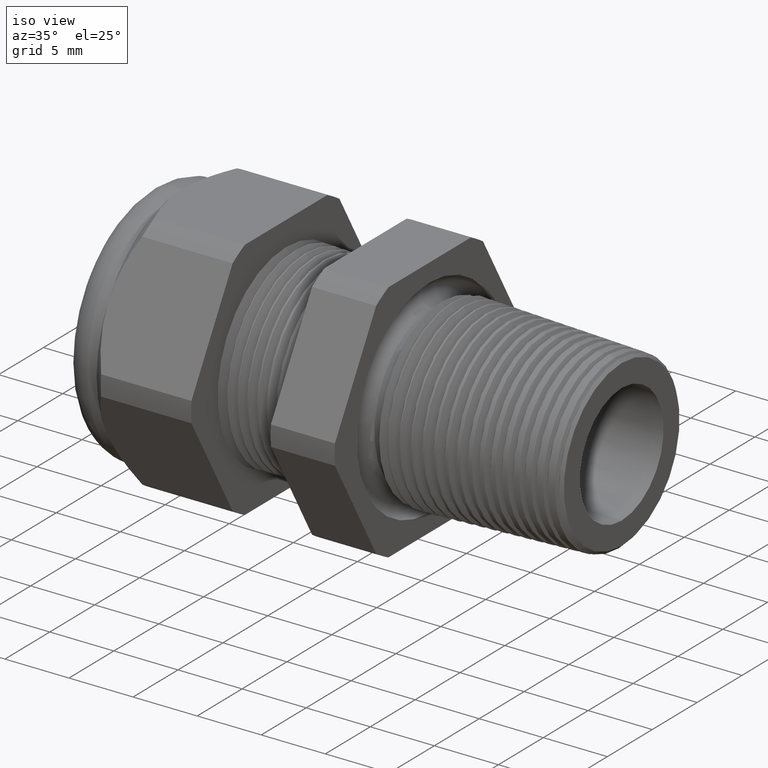
[diagram: clean part render]
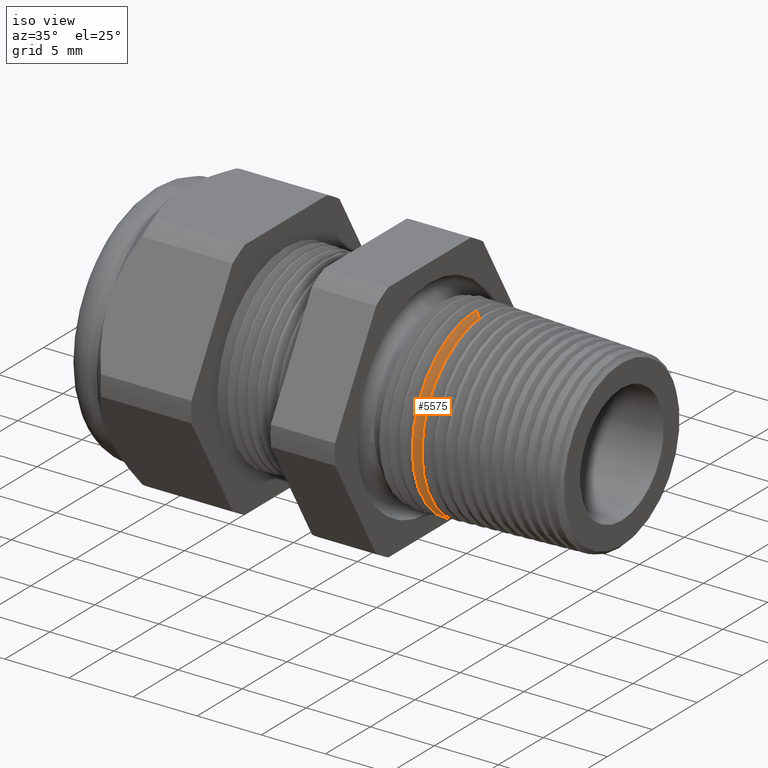
[diagram: same view with one face highlighted and labeled with its STEP entity id]
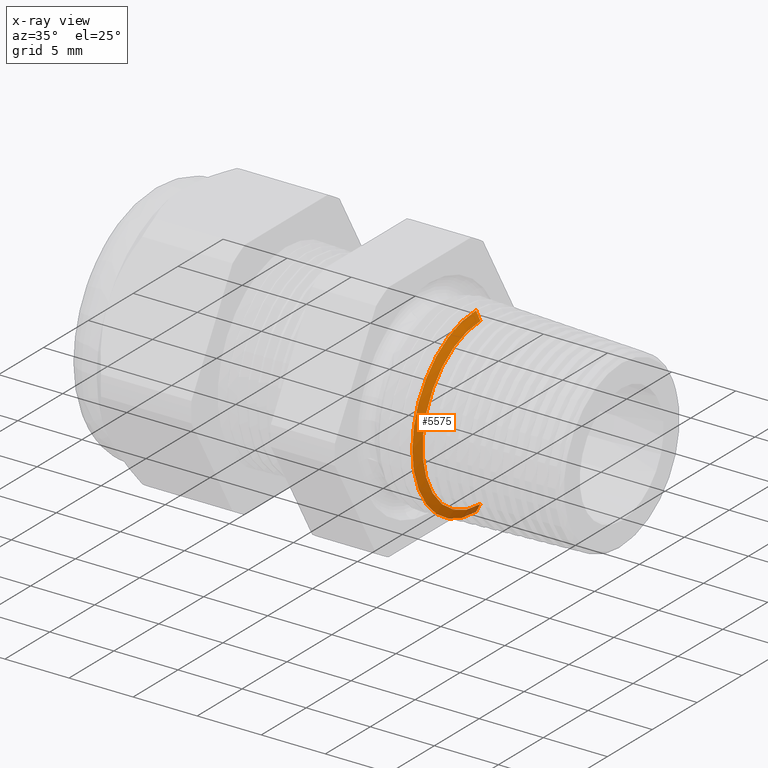
[diagram: x-ray of the same camera — body ghosted, the highlighted face saturated]
A machine part, iso view. The second image highlights one B-rep face of the part: STEP entity #5575.
The next image is the same camera in x-ray: the body ghosted, the highlighted face saturated — about 3% of this face is hidden behind the body in this view.
In plain terms, the highlighted conical surface has half-angle 62 deg.
Its self-contained STEP definition (entity closure, byte-faithful):
#2 = ORIENTED_EDGE ( 'NONE', *, *, #1521, .T. ) ;
#817 = EDGE_CURVE ( 'NONE', #867, #883, #3137, .T. ) ;
#864 = EDGE_CURVE ( 'NONE', #879, #865, #3194, .T. ) ;
#865 = VERTEX_POINT ( 'NONE', #3190 ) ;
#867 = VERTEX_POINT ( 'NONE', #3189 ) ;
#879 = VERTEX_POINT ( 'NONE', #3217 ) ;
#883 = VERTEX_POINT ( 'NONE', #3206 ) ;
#1521 = EDGE_CURVE ( 'NONE', #883, #865, #4401, .T. ) ;
#3134 = DIRECTION ( 'NONE',  ( -0.4694715627859018000, 0.0000000000000000000, 0.8829475928589209900 ) ) ;
#3135 = VECTOR ( 'NONE', #3134, 39.37007874015748100 ) ;
#3136 = CARTESIAN_POINT ( 'NONE',  ( -0.1699999999999999600, 0.0000000000000000000, 0.2846046150878539500 ) ) ;
#3137 = LINE ( 'NONE', #3136, #3135 ) ;
#3189 = CARTESIAN_POINT ( 'NONE',  ( -0.1537370280109210400, 0.0000000000000000000, 0.2540184132628081100 ) ) ;
#3190 = CARTESIAN_POINT ( 'NONE',  ( -0.1673513421592404700, 3.425523832454768600E-017, -0.2796232141890905900 ) ) ;
#3191 = DIRECTION ( 'NONE',  ( -0.4694715627859018000, 1.081298943409538000E-016, -0.8829475928589209900 ) ) ;
#3192 = VECTOR ( 'NONE', #3191, 39.37007874015748100 ) ;
#3193 = CARTESIAN_POINT ( 'NONE',  ( -0.1699999999999999600, 3.485401308899049100E-017, -0.2846046150878539500 ) ) ;
#3194 = LINE ( 'NONE', #3193, #3192 ) ;
#3206 = CARTESIAN_POINT ( 'NONE',  ( -0.1673513421592404700, 0.0000000000000000000, 0.2796232141890905900 ) ) ;
#3217 = CARTESIAN_POINT ( 'NONE',  ( -0.1537370280109210400, 3.267612554753760900E-017, -0.2540184132628081100 ) ) ;
#4398 = DIRECTION ( 'NONE',  ( 0.0000000000000000000, 0.0000000000000000000, 1.000000000000000000 ) ) ;
#4399 = DIRECTION ( 'NONE',  ( 1.000000000000000000, 0.0000000000000000000, 0.0000000000000000000 ) ) ;
#4400 = AXIS2_PLACEMENT_3D ( 'NONE', #4406, #4399, #4398 ) ;
#4401 = CIRCLE ( 'NONE', #4400, 0.2796232141890905900 ) ;
#4406 = CARTESIAN_POINT ( 'NONE',  ( -0.1673513421592404700, 0.0000000000000000000, 0.0000000000000000000 ) ) ;
#5086 = DIRECTION ( 'NONE',  ( 0.0000000000000000000, 0.0000000000000000000, 1.000000000000000000 ) ) ;
#5087 = DIRECTION ( 'NONE',  ( -1.000000000000000000, 0.0000000000000000000, 0.0000000000000000000 ) ) ;
#5088 = CARTESIAN_POINT ( 'NONE',  ( -0.1699999999999999600, 0.0000000000000000000, 0.0000000000000000000 ) ) ;
#5089 = AXIS2_PLACEMENT_3D ( 'NONE', #5088, #5087, #5086 ) ;
#5091 = CONICAL_SURFACE ( 'NONE', #5089, 0.2846046150878539500, 1.082104136236471800 ) ;
#5092 = FACE_OUTER_BOUND ( 'NONE', #5574, .T. ) ;
#5093 = DIRECTION ( 'NONE',  ( 0.0000000000000000000, 0.0000000000000000000, -1.000000000000000000 ) ) ;
#5094 = DIRECTION ( 'NONE',  ( 1.000000000000000000, 0.0000000000000000000, 0.0000000000000000000 ) ) ;
#5095 = CARTESIAN_POINT ( 'NONE',  ( -0.1537370280109210400, 0.0000000000000000000, 0.0000000000000000000 ) ) ;
#5096 = AXIS2_PLACEMENT_3D ( 'NONE', #5095, #5094, #5093 ) ;
#5099 = CIRCLE ( 'NONE', #5096, 0.2540184132628081100 ) ;
#5570 = ORIENTED_EDGE ( 'NONE', *, *, #817, .T. ) ;
#5571 = ORIENTED_EDGE ( 'NONE', *, *, #5572, .F. ) ;
#5572 = EDGE_CURVE ( 'NONE', #867, #879, #5099, .T. ) ;
#5573 = ORIENTED_EDGE ( 'NONE', *, *, #864, .F. ) ;
#5574 = EDGE_LOOP ( 'NONE', ( #5573, #5571, #5570, #2 ) ) ;
#5575 = ADVANCED_FACE ( 'NONE', ( #5092 ), #5091, .T. ) ;